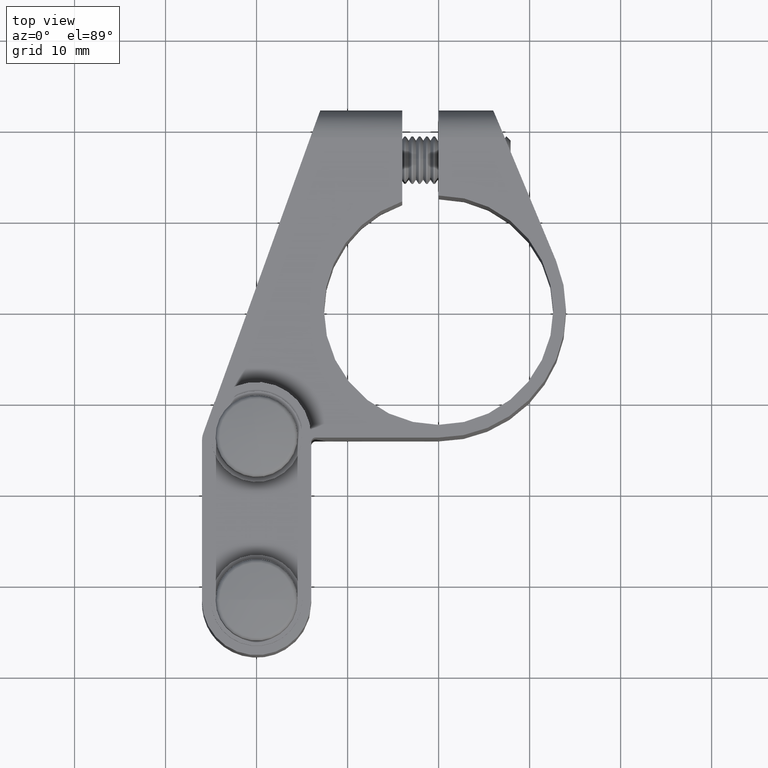
[diagram: clean part render]
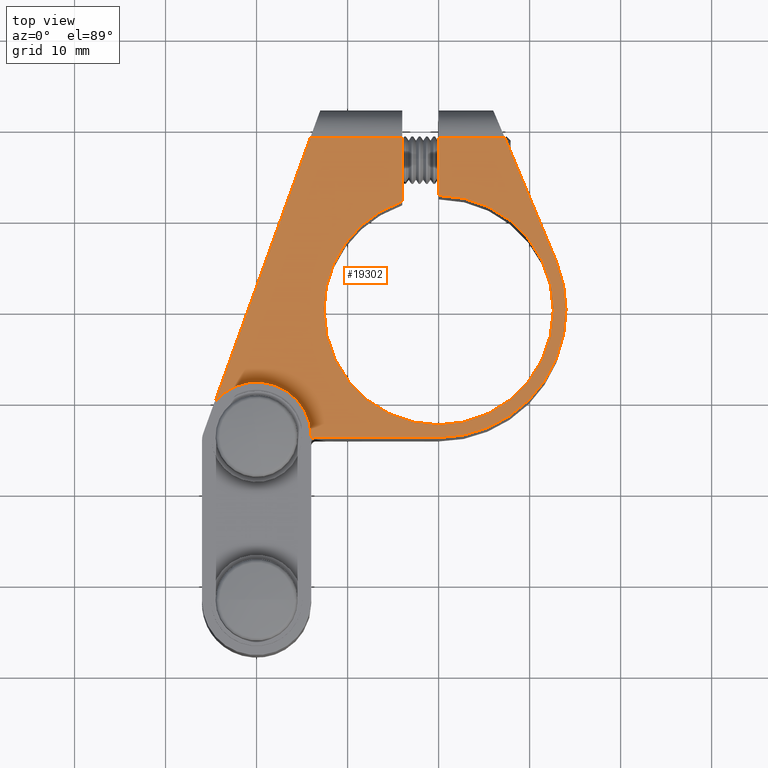
[diagram: same view with one face highlighted and labeled with its STEP entity id]
A machine part, top view. The second image highlights one B-rep face of the part: STEP entity #19302.
In plain terms, the highlighted planar face has unit normal (0, 0, 1).
Its self-contained STEP definition (entity closure, byte-faithful):
#69 = VERTEX_POINT ( 'NONE', #187 ) ;
#71 = VERTEX_POINT ( 'NONE', #6037 ) ;
#187 = CARTESIAN_POINT ( 'NONE',  ( -14.08333333333333200, 19.00000000000000400, 12.25000000000000000 ) ) ;
#241 = ORIENTED_EDGE ( 'NONE', *, *, #15758, .T. ) ;
#258 = VECTOR ( 'NONE', #9575, 1000.000000000000100 ) ;
#404 = AXIS2_PLACEMENT_3D ( 'NONE', #16859, #18524, #1965 ) ;
#1138 = DIRECTION ( 'NONE',  ( -0.0000000000000000000, -0.0000000000000000000, -1.000000000000000000 ) ) ;
#1199 = CARTESIAN_POINT ( 'NONE',  ( -20.00000000000000000, -13.99999999999999800, 12.25000000000000000 ) ) ;
#1206 = DIRECTION ( 'NONE',  ( 1.000000000000000000, 0.0000000000000000000, 0.0000000000000000000 ) ) ;
#1663 = ORIENTED_EDGE ( 'NONE', *, *, #4647, .T. ) ;
#1676 = EDGE_CURVE ( 'NONE', #13318, #1986, #10160, .T. ) ;
#1878 = ORIENTED_EDGE ( 'NONE', *, *, #16050, .T. ) ;
#1965 = DIRECTION ( 'NONE',  ( 1.000000000000000000, 0.0000000000000000000, 0.0000000000000000000 ) ) ;
#1986 = VERTEX_POINT ( 'NONE', #3967 ) ;
#2067 = CIRCLE ( 'NONE', #7875, 6.000000000000003600 ) ;
#2281 = CARTESIAN_POINT ( 'NONE',  ( 5.925882729774182700E-016, 22.00000000000000000, 12.25000000000000000 ) ) ;
#2649 = DIRECTION ( 'NONE',  ( 0.0000000000000000000, -0.0000000000000000000, -1.000000000000000000 ) ) ;
#2689 = DIRECTION ( 'NONE',  ( -0.0000000000000000000, -0.0000000000000000000, -1.000000000000000000 ) ) ;
#2889 = CIRCLE ( 'NONE', #10042, 12.60000000000000000 ) ;
#2956 = DIRECTION ( 'NONE',  ( 0.0000000000000000000, 0.0000000000000000000, 1.000000000000000000 ) ) ;
#3108 = VERTEX_POINT ( 'NONE', #13028 ) ;
#3403 = VERTEX_POINT ( 'NONE', #18938 ) ;
#3577 = ORIENTED_EDGE ( 'NONE', *, *, #12872, .T. ) ;
#3682 = LINE ( 'NONE', #8935, #11147 ) ;
#3967 = CARTESIAN_POINT ( 'NONE',  ( 12.60000000000000000, 1.543054966925665100E-015, 12.25000000000000000 ) ) ;
#3969 = VECTOR ( 'NONE', #7204, 1000.000000000000000 ) ;
#4054 = AXIS2_PLACEMENT_3D ( 'NONE', #7114, #2689, #15942 ) ;
#4092 = CARTESIAN_POINT ( 'NONE',  ( -13.99999999999999800, -13.99999999999999800, 12.25000000000000000 ) ) ;
#4262 = DIRECTION ( 'NONE',  ( 1.000000000000000000, 0.0000000000000000000, 0.0000000000000000000 ) ) ;
#4394 = CARTESIAN_POINT ( 'NONE',  ( 0.0000000000000000000, 0.0000000000000000000, 12.25000000000000000 ) ) ;
#4441 = DIRECTION ( 'NONE',  ( 1.000000000000000000, 0.0000000000000000000, -0.0000000000000000000 ) ) ;
#4616 = DIRECTION ( 'NONE',  ( -1.000000000000000000, 0.0000000000000000000, 0.0000000000000000000 ) ) ;
#4647 = EDGE_CURVE ( 'NONE', #18525, #9341, #9355, .T. ) ;
#4678 = CARTESIAN_POINT ( 'NONE',  ( 5.925882729774182700E-016, 19.00000000000000000, 12.25000000000000000 ) ) ;
#4683 = CARTESIAN_POINT ( 'NONE',  ( 7.250000000000000900, 19.00000000000000400, 12.25000000000000000 ) ) ;
#4781 = LINE ( 'NONE', #19378, #16271 ) ;
#5275 = ORIENTED_EDGE ( 'NONE', *, *, #14126, .T. ) ;
#5637 = AXIS2_PLACEMENT_3D ( 'NONE', #6007, #2956, #4441 ) ;
#5682 = CARTESIAN_POINT ( 'NONE',  ( -3.999999999999999100, 22.00000000000000000, 12.25000000000000000 ) ) ;
#5761 = VERTEX_POINT ( 'NONE', #17376 ) ;
#5914 = DIRECTION ( 'NONE',  ( 0.0000000000000000000, 0.0000000000000000000, 1.000000000000000000 ) ) ;
#5941 = EDGE_CURVE ( 'NONE', #3403, #71, #15920, .T. ) ;
#5946 = DIRECTION ( 'NONE',  ( -0.3846153846153848000, 0.9230769230769230200, 0.0000000000000000000 ) ) ;
#6007 = CARTESIAN_POINT ( 'NONE',  ( 0.0000000000000000000, 0.0000000000000000000, 12.25000000000000000 ) ) ;
#6037 = CARTESIAN_POINT ( 'NONE',  ( -13.49999999999999800, -13.99999999999999800, 12.25000000000000000 ) ) ;
#6058 = VERTEX_POINT ( 'NONE', #7370 ) ;
#6471 = EDGE_CURVE ( 'NONE', #69, #9962, #15419, .T. ) ;
#6703 = EDGE_CURVE ( 'NONE', #9341, #13318, #14958, .T. ) ;
#7114 = CARTESIAN_POINT ( 'NONE',  ( -13.49999999999999800, -14.49999999999999800, 12.25000000000000000 ) ) ;
#7204 = DIRECTION ( 'NONE',  ( 1.000000000000000000, -1.239088197126291100E-016, 0.0000000000000000000 ) ) ;
#7213 = VECTOR ( 'NONE', #13630, 1000.000000000000000 ) ;
#7370 = CARTESIAN_POINT ( 'NONE',  ( 12.92307692307692700, 5.384615384615384100, 12.25000000000000000 ) ) ;
#7533 = DIRECTION ( 'NONE',  ( -0.0000000000000000000, -0.0000000000000000000, -1.000000000000000000 ) ) ;
#7747 = CARTESIAN_POINT ( 'NONE',  ( -3.999999999999998200, 11.94822162499507800, 12.25000000000000000 ) ) ;
#7865 = CARTESIAN_POINT ( 'NONE',  ( 7.715274834628325400E-016, 12.60000000000000000, 12.25000000000000000 ) ) ;
#7875 = AXIS2_PLACEMENT_3D ( 'NONE', #1199, #2649, #4262 ) ;
#8024 = AXIS2_PLACEMENT_3D ( 'NONE', #16122, #5914, #19294 ) ;
#8705 = ORIENTED_EDGE ( 'NONE', *, *, #9058, .F. ) ;
#8805 = DIRECTION ( 'NONE',  ( -1.000000000000000000, 3.854941057726239100E-016, 0.0000000000000000000 ) ) ;
#8865 = EDGE_CURVE ( 'NONE', #6058, #18525, #3682, .T. ) ;
#8935 = CARTESIAN_POINT ( 'NONE',  ( 12.92307692307692700, 5.384615384615384100, 12.25000000000000000 ) ) ;
#9053 = LINE ( 'NONE', #13833, #18683 ) ;
#9058 = EDGE_CURVE ( 'NONE', #3403, #10530, #9053, .T. ) ;
#9341 = VERTEX_POINT ( 'NONE', #13165 ) ;
#9355 = LINE ( 'NONE', #4678, #15242 ) ;
#9368 = DIRECTION ( 'NONE',  ( 0.0000000000000000000, 1.000000000000000000, -0.0000000000000000000 ) ) ;
#9511 = CARTESIAN_POINT ( 'NONE',  ( -12.99999999999999800, 22.00000000000000400, 12.25000000000000000 ) ) ;
#9575 = DIRECTION ( 'NONE',  ( -0.3396444637775567500, -0.9405538996916954500, 0.0000000000000000000 ) ) ;
#9675 = ORIENTED_EDGE ( 'NONE', *, *, #14763, .T. ) ;
#9871 = CARTESIAN_POINT ( 'NONE',  ( 0.0000000000000000000, 0.0000000000000000000, 12.25000000000000000 ) ) ;
#9962 = VERTEX_POINT ( 'NONE', #11201 ) ;
#10003 = ORIENTED_EDGE ( 'NONE', *, *, #17703, .T. ) ;
#10042 = AXIS2_PLACEMENT_3D ( 'NONE', #4394, #7533, #10511 ) ;
#10059 = ORIENTED_EDGE ( 'NONE', *, *, #5941, .T. ) ;
#10160 = CIRCLE ( 'NONE', #404, 12.60000000000000000 ) ;
#10511 = DIRECTION ( 'NONE',  ( 1.000000000000000000, 0.0000000000000000000, 0.0000000000000000000 ) ) ;
#10530 = VERTEX_POINT ( 'NONE', #4092 ) ;
#11147 = VECTOR ( 'NONE', #5946, 1000.000000000000000 ) ;
#11201 = CARTESIAN_POINT ( 'NONE',  ( -24.61569965870306800, -10.16655290102388100, 12.25000000000000000 ) ) ;
#11675 = LINE ( 'NONE', #19146, #3969 ) ;
#11831 = CIRCLE ( 'NONE', #8024, 14.00000000000000200 ) ;
#12326 = EDGE_LOOP ( 'NONE', ( #16146, #1663, #14766, #15829, #1878, #12879, #5275, #10003, #15805, #9675, #8705, #10059, #3577, #241 ) ) ;
#12844 = VECTOR ( 'NONE', #17113, 1000.000000000000000 ) ;
#12872 = EDGE_CURVE ( 'NONE', #71, #3108, #11675, .T. ) ;
#12879 = ORIENTED_EDGE ( 'NONE', *, *, #18985, .T. ) ;
#13028 = CARTESIAN_POINT ( 'NONE',  ( -2.571758278209441700E-015, -14.00000000000000200, 12.25000000000000000 ) ) ;
#13165 = CARTESIAN_POINT ( 'NONE',  ( 4.034643560697315800E-016, 19.00000000000000000, 12.25000000000000000 ) ) ;
#13318 = VERTEX_POINT ( 'NONE', #7865 ) ;
#13576 = PLANE ( 'NONE',  #5637 ) ;
#13630 = DIRECTION ( 'NONE',  ( -8.628938140391291900E-017, 1.000000000000000000, -0.0000000000000000000 ) ) ;
#13833 = CARTESIAN_POINT ( 'NONE',  ( -13.99999999999999800, -38.00000000000000700, 12.25000000000000000 ) ) ;
#14126 = EDGE_CURVE ( 'NONE', #17882, #18191, #14936, .T. ) ;
#14194 = CIRCLE ( 'NONE', #18841, 12.60000000000000000 ) ;
#14763 = EDGE_CURVE ( 'NONE', #9962, #10530, #2067, .T. ) ;
#14766 = ORIENTED_EDGE ( 'NONE', *, *, #6703, .T. ) ;
#14936 = LINE ( 'NONE', #5682, #7213 ) ;
#14958 = LINE ( 'NONE', #2281, #12844 ) ;
#15242 = VECTOR ( 'NONE', #4616, 1000.000000000000000 ) ;
#15419 = LINE ( 'NONE', #9511, #258 ) ;
#15758 = EDGE_CURVE ( 'NONE', #3108, #6058, #11831, .T. ) ;
#15805 = ORIENTED_EDGE ( 'NONE', *, *, #6471, .T. ) ;
#15829 = ORIENTED_EDGE ( 'NONE', *, *, #1676, .T. ) ;
#15920 = CIRCLE ( 'NONE', #4054, 0.5000000000000004400 ) ;
#15942 = DIRECTION ( 'NONE',  ( 1.000000000000000000, 0.0000000000000000000, 0.0000000000000000000 ) ) ;
#16050 = EDGE_CURVE ( 'NONE', #1986, #5761, #14194, .T. ) ;
#16122 = CARTESIAN_POINT ( 'NONE',  ( 0.0000000000000000000, 0.0000000000000000000, 12.25000000000000000 ) ) ;
#16146 = ORIENTED_EDGE ( 'NONE', *, *, #8865, .T. ) ;
#16271 = VECTOR ( 'NONE', #8805, 1000.000000000000000 ) ;
#16445 = FACE_OUTER_BOUND ( 'NONE', #12326, .T. ) ;
#16859 = CARTESIAN_POINT ( 'NONE',  ( 0.0000000000000000000, 0.0000000000000000000, 12.25000000000000000 ) ) ;
#17113 = DIRECTION ( 'NONE',  ( -6.304130563589558300E-017, -1.000000000000000000, 0.0000000000000000000 ) ) ;
#17376 = CARTESIAN_POINT ( 'NONE',  ( -12.60000000000000000, 0.0000000000000000000, 12.25000000000000000 ) ) ;
#17703 = EDGE_CURVE ( 'NONE', #18191, #69, #4781, .T. ) ;
#17882 = VERTEX_POINT ( 'NONE', #7747 ) ;
#18028 = CARTESIAN_POINT ( 'NONE',  ( -3.999999999999999100, 19.00000000000000000, 12.25000000000000000 ) ) ;
#18191 = VERTEX_POINT ( 'NONE', #18028 ) ;
#18524 = DIRECTION ( 'NONE',  ( -0.0000000000000000000, -0.0000000000000000000, -1.000000000000000000 ) ) ;
#18525 = VERTEX_POINT ( 'NONE', #4683 ) ;
#18683 = VECTOR ( 'NONE', #9368, 1000.000000000000000 ) ;
#18841 = AXIS2_PLACEMENT_3D ( 'NONE', #9871, #1138, #1206 ) ;
#18938 = CARTESIAN_POINT ( 'NONE',  ( -13.99999999999999800, -14.49999999999999800, 12.25000000000000000 ) ) ;
#18985 = EDGE_CURVE ( 'NONE', #5761, #17882, #2889, .T. ) ;
#19146 = CARTESIAN_POINT ( 'NONE',  ( -13.99999999999999800, -13.99999999999999800, 12.25000000000000000 ) ) ;
#19294 = DIRECTION ( 'NONE',  ( 1.000000000000000000, 0.0000000000000000000, 0.0000000000000000000 ) ) ;
#19302 = ADVANCED_FACE ( 'NONE', ( #16445 ), #13576, .T. ) ;
#19378 = CARTESIAN_POINT ( 'NONE',  ( -13.00000000000000000, 19.00000000000000400, 12.25000000000000000 ) ) ;